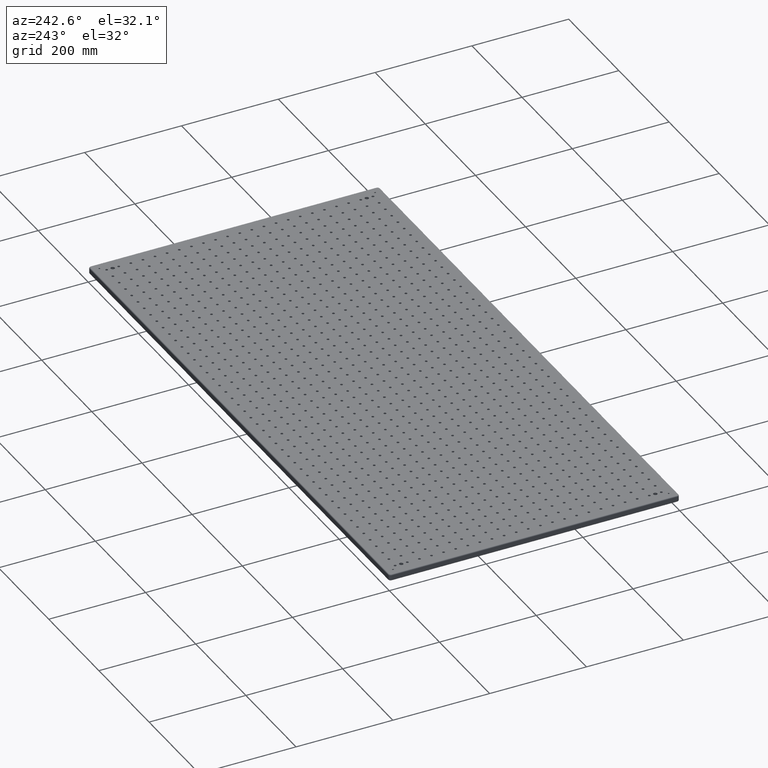
[diagram: clean part render]
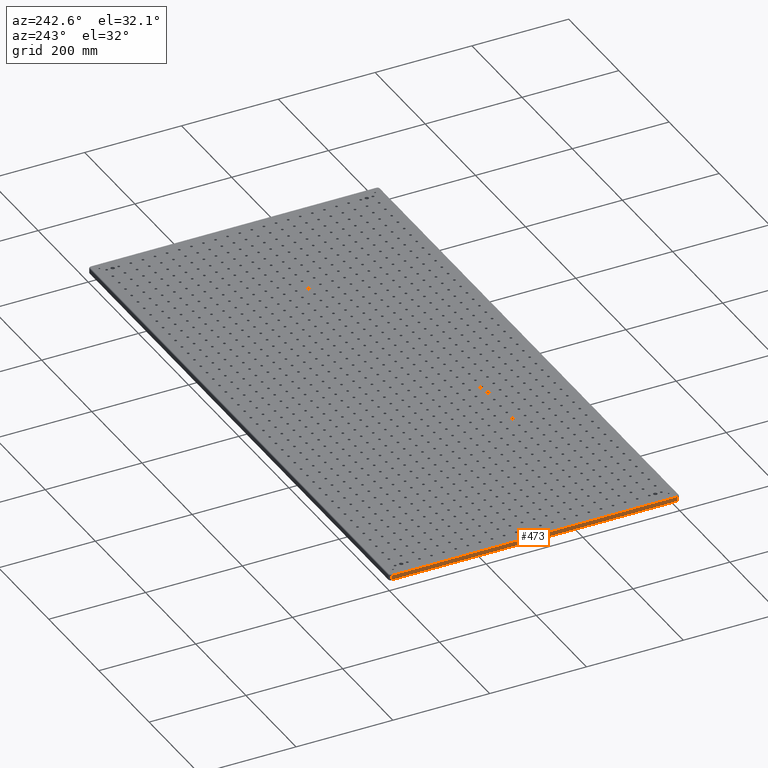
[diagram: same view with one face highlighted and labeled with its STEP entity id]
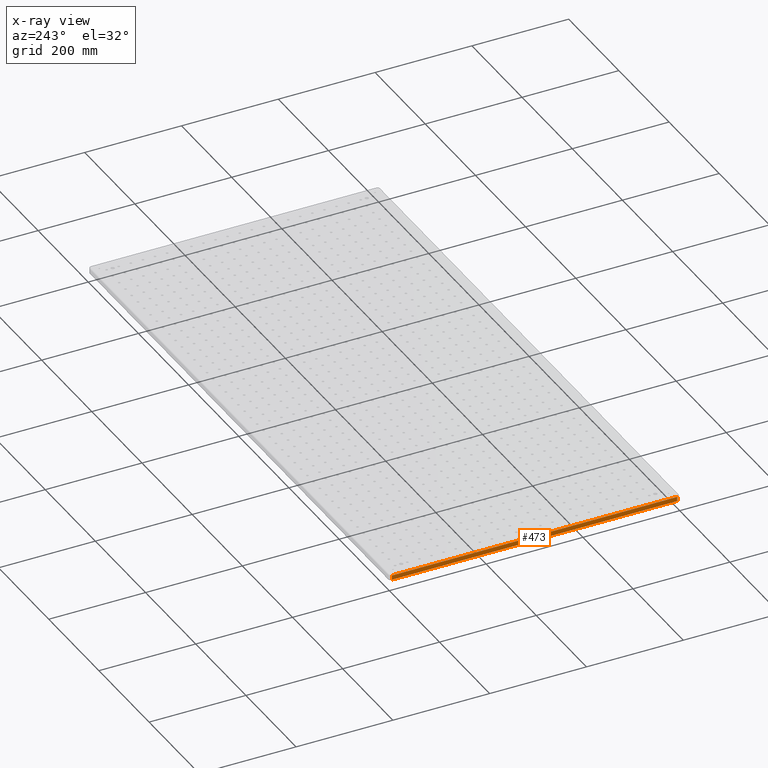
[diagram: x-ray of the same camera — body ghosted, the highlighted face saturated]
A machine part, auxiliary view. The second image highlights one B-rep face of the part: STEP entity #473.
The next image is the same camera in x-ray: the body ghosted, the highlighted face saturated — about 0% of this face is hidden behind the body in this view.
In plain terms, the highlighted planar face has unit normal (-1, 0, 0).
Its self-contained STEP definition (entity closure, byte-faithful):
#473 = ADVANCED_FACE ( 'NONE', ( #41949 ), #42827, .T. ) ;
#2210 = EDGE_CURVE ( 'NONE', #4393, #65517, #56862, .T. ) ;
#4016 = EDGE_CURVE ( 'NONE', #77737, #4393, #28927, .T. ) ;
#4393 = VERTEX_POINT ( 'NONE', #62082 ) ;
#8044 = DIRECTION ( 'NONE',  ( -0.0000000000000000000, -0.0000000000000000000, -1.000000000000000000 ) ) ;
#11257 = LINE ( 'NONE', #46926, #66423 ) ;
#14665 = CARTESIAN_POINT ( 'NONE',  ( 0.0000000000000000000, 595.0000000000000000, -13.00000000000000000 ) ) ;
#14767 = CARTESIAN_POINT ( 'NONE',  ( 0.0000000000000000000, 4.999999999999998200, -11.00000000000000000 ) ) ;
#15271 = CARTESIAN_POINT ( 'NONE',  ( 0.0000000000000000000, 595.0000000000000000, -11.00000000000000000 ) ) ;
#19083 = VECTOR ( 'NONE', #81297, 1000.000000000000000 ) ;
#24554 = CARTESIAN_POINT ( 'NONE',  ( 0.0000000000000000000, 4.999999999999998200, -2.000000000000000000 ) ) ;
#25600 = LINE ( 'NONE', #27945, #73815 ) ;
#27945 = CARTESIAN_POINT ( 'NONE',  ( 0.0000000000000000000, 4.999999999999998200, -13.00000000000000000 ) ) ;
#28927 = LINE ( 'NONE', #75234, #19083 ) ;
#30126 = DIRECTION ( 'NONE',  ( -1.000000000000000000, 0.0000000000000000000, 0.0000000000000000000 ) ) ;
#38131 = EDGE_CURVE ( 'NONE', #38293, #77737, #25600, .T. ) ;
#38293 = VERTEX_POINT ( 'NONE', #14767 ) ;
#40672 = DIRECTION ( 'NONE',  ( 0.0000000000000000000, 0.0000000000000000000, 1.000000000000000000 ) ) ;
#41278 = ORIENTED_EDGE ( 'NONE', *, *, #65550, .T. ) ;
#41949 = FACE_OUTER_BOUND ( 'NONE', #47146, .T. ) ;
#42296 = DIRECTION ( 'NONE',  ( 0.0000000000000000000, 0.0000000000000000000, 1.000000000000000000 ) ) ;
#42827 = PLANE ( 'NONE',  #69053 ) ;
#46926 = CARTESIAN_POINT ( 'NONE',  ( 0.0000000000000000000, 0.0000000000000000000, -11.00000000000000000 ) ) ;
#47146 = EDGE_LOOP ( 'NONE', ( #51770, #61952, #65436, #41278 ) ) ;
#51770 = ORIENTED_EDGE ( 'NONE', *, *, #38131, .T. ) ;
#54907 = CARTESIAN_POINT ( 'NONE',  ( 0.0000000000000000000, 0.0000000000000000000, -13.00000000000000000 ) ) ;
#56862 = LINE ( 'NONE', #14665, #75547 ) ;
#59373 = DIRECTION ( 'NONE',  ( 0.0000000000000000000, -1.000000000000000000, 0.0000000000000000000 ) ) ;
#61952 = ORIENTED_EDGE ( 'NONE', *, *, #4016, .T. ) ;
#62082 = CARTESIAN_POINT ( 'NONE',  ( 0.0000000000000000000, 595.0000000000000000, -2.000000000000000000 ) ) ;
#65436 = ORIENTED_EDGE ( 'NONE', *, *, #2210, .T. ) ;
#65517 = VERTEX_POINT ( 'NONE', #15271 ) ;
#65550 = EDGE_CURVE ( 'NONE', #65517, #38293, #11257, .T. ) ;
#66423 = VECTOR ( 'NONE', #59373, 1000.000000000000000 ) ;
#69053 = AXIS2_PLACEMENT_3D ( 'NONE', #54907, #30126, #42296 ) ;
#73815 = VECTOR ( 'NONE', #40672, 1000.000000000000000 ) ;
#75234 = CARTESIAN_POINT ( 'NONE',  ( 0.0000000000000000000, 595.0000000000000000, -2.000000000000000000 ) ) ;
#75547 = VECTOR ( 'NONE', #8044, 1000.000000000000000 ) ;
#77737 = VERTEX_POINT ( 'NONE', #24554 ) ;
#81297 = DIRECTION ( 'NONE',  ( -0.0000000000000000000, 1.000000000000000000, -0.0000000000000000000 ) ) ;